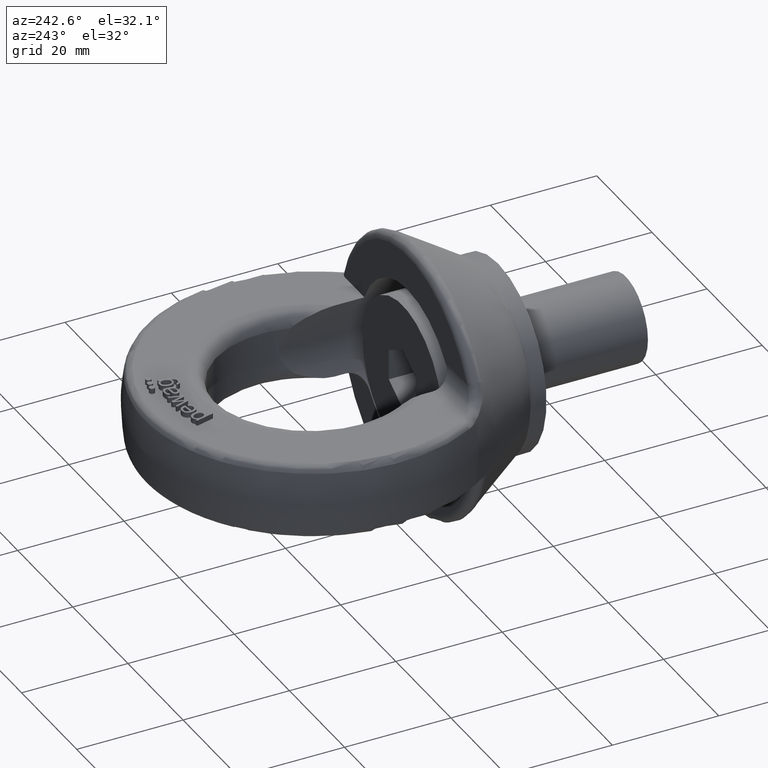
[diagram: clean part render]
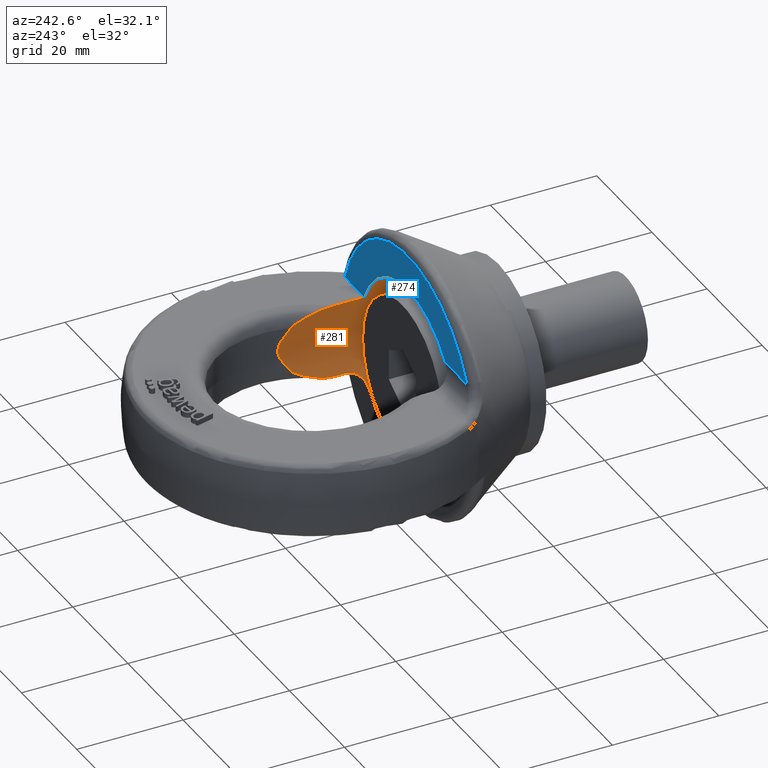
[diagram: same view with the hole feature highlighted: cylindrical wall and planar end face, labeled with their STEP entity ids]
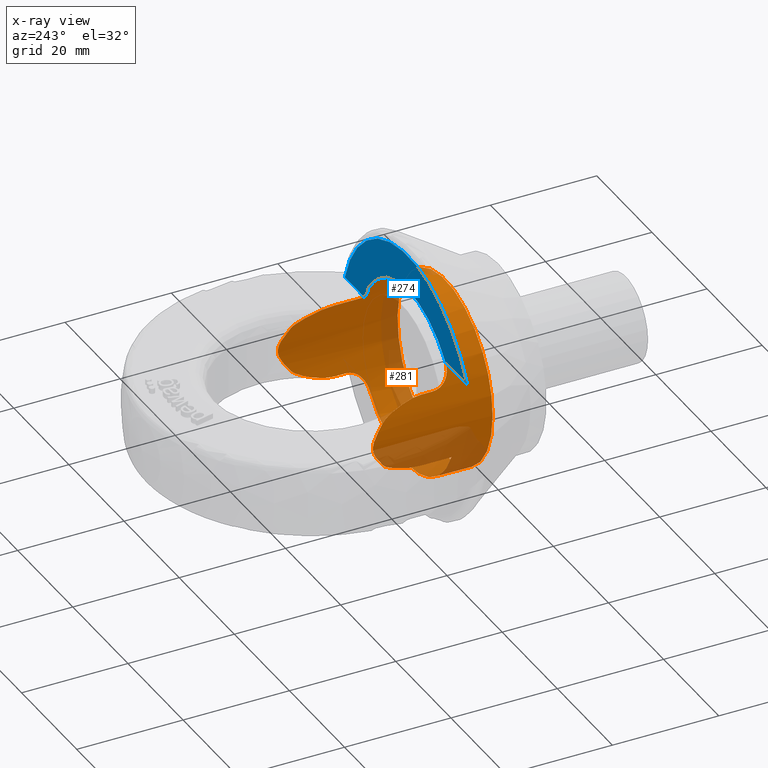
[diagram: x-ray of the same camera — body ghosted, the hole faces saturated]
A machine part, auxiliary view. The highlighted faces form one hole feature of diameter 34.4864 mm: the cylindrical wall (entity #281, orange) and its adjacent planar end face (entity #274, blue) — they share a circular edge in the B-rep.
The next image is the same camera in x-ray (body ghosted, the hole faces saturated) — the bore reads through the body.
Wall:
#112=CYLINDRICAL_SURFACE('',#3063,17.2431578064992);
#281=ADVANCED_FACE('',(#594,#595),#112,.F.);
#540=CIRCLE('',#3041,17.2431578064992);
#552=CIRCLE('',#3059,17.2431578064992);
#554=CIRCLE('',#3062,17.2431578064992);
#594=FACE_BOUND('',#659,.T.);
#595=FACE_BOUND('',#660,.T.);
#659=EDGE_LOOP('',(#1355));
#660=EDGE_LOOP('',(#1356,#1357,#1358,#1359,#1360,#1361,#1362,#1363,#1364,
#1365,#1366,#1367,#1368,#1369));
#865=LINE('',#3883,#1049);
#866=LINE('',#3888,#1050);
#877=LINE('',#4134,#1061);
#878=LINE('',#4155,#1062);
#1049=VECTOR('',#3211,1.);
#1050=VECTOR('',#3214,1.);
#1061=VECTOR('',#3273,1.);
#1062=VECTOR('',#3276,1.);
#1355=ORIENTED_EDGE('',*,*,#2453,.F.);
#1356=ORIENTED_EDGE('',*,*,#2410,.F.);
#1357=ORIENTED_EDGE('',*,*,#2455,.T.);
#1358=ORIENTED_EDGE('',*,*,#2447,.T.);
#1359=ORIENTED_EDGE('',*,*,#2456,.T.);
#1360=ORIENTED_EDGE('',*,*,#2457,.F.);
#1361=ORIENTED_EDGE('',*,*,#2458,.T.);
#1362=ORIENTED_EDGE('',*,*,#2459,.T.);
#1363=ORIENTED_EDGE('',*,*,#2460,.F.);
#1364=ORIENTED_EDGE('',*,*,#2461,.T.);
#1365=ORIENTED_EDGE('',*,*,#2449,.T.);
#1366=ORIENTED_EDGE('',*,*,#2462,.T.);
#1367=ORIENTED_EDGE('',*,*,#2408,.F.);
#1368=ORIENTED_EDGE('',*,*,#2463,.T.);
#1369=ORIENTED_EDGE('',*,*,#2433,.T.);
#2129=VERTEX_POINT('',#3884);
#2130=VERTEX_POINT('',#3885);
#2131=VERTEX_POINT('',#3887);
#2132=VERTEX_POINT('',#3889);
#2152=VERTEX_POINT('',#4024);
#2165=VERTEX_POINT('',#4089);
#2166=VERTEX_POINT('',#4090);
#2167=VERTEX_POINT('',#4092);
#2168=VERTEX_POINT('',#4103);
#2171=VERTEX_POINT('',#4113);
#2173=VERTEX_POINT('',#4133);
#2174=VERTEX_POINT('',#4135);
#2175=VERTEX_POINT('',#4152);
#2176=VERTEX_POINT('',#4154);
#2177=VERTEX_POINT('',#4156);
#2408=EDGE_CURVE('',#2129,#2130,#865,.T.);
#2410=EDGE_CURVE('',#2131,#2132,#866,.T.);
#2433=EDGE_CURVE('',#2152,#2132,#540,.T.);
#2447=EDGE_CURVE('',#2165,#2166,#2818,.T.);
#2449=EDGE_CURVE('',#2168,#2167,#2819,.T.);
#2453=EDGE_CURVE('',#2171,#2171,#552,.T.);
#2455=EDGE_CURVE('',#2131,#2165,#2820,.T.);
#2456=EDGE_CURVE('',#2166,#2173,#2821,.T.);
#2457=EDGE_CURVE('',#2174,#2173,#877,.T.);
#2458=EDGE_CURVE('',#2174,#2175,#2822,.T.);
#2459=EDGE_CURVE('',#2175,#2176,#554,.T.);
#2460=EDGE_CURVE('',#2177,#2176,#878,.T.);
#2461=EDGE_CURVE('',#2177,#2168,#2823,.T.);
#2462=EDGE_CURVE('',#2167,#2130,#2824,.T.);
#2463=EDGE_CURVE('',#2129,#2152,#2825,.T.);
#2818=B_SPLINE_CURVE_WITH_KNOTS('',3,(#4079,#4080,#4081,#4082,#4083,#4084,
#4085,#4086,#4087,#4088),.UNSPECIFIED.,.F.,.F.,(4,2,2,2,4),(0.,0.25,0.5,
0.75,1.),.UNSPECIFIED.);
#2819=B_SPLINE_CURVE_WITH_KNOTS('',3,(#4093,#4094,#4095,#4096,#4097,#4098,
#4099,#4100,#4101,#4102),.UNSPECIFIED.,.F.,.F.,(4,2,2,2,4),(0.,0.25,0.5,
0.75,1.),.UNSPECIFIED.);
#2820=B_SPLINE_CURVE_WITH_KNOTS('',3,(#4117,#4118,#4119,#4120,#4121,#4122,
#4123,#4124),.UNSPECIFIED.,.F.,.F.,(4,2,2,4),(0.,0.499999999999999,0.75,
1.),.UNSPECIFIED.);
#2821=B_SPLINE_CURVE_WITH_KNOTS('',3,(#4125,#4126,#4127,#4128,#4129,#4130,
#4131,#4132),.UNSPECIFIED.,.F.,.F.,(4,2,2,4),(0.,0.25,0.5,1.),
 .UNSPECIFIED.);
#2822=B_SPLINE_CURVE_WITH_KNOTS('',3,(#4136,#4137,#4138,#4139,#4140,#4141,
#4142,#4143,#4144,#4145,#4146,#4147,#4148,#4149,#4150,#4151),
 .UNSPECIFIED.,.F.,.F.,(4,3,3,3,3,4),(0.,0.182677939227406,0.365097147091186,
0.551353588669147,0.751434623394889,1.),.UNSPECIFIED.);
#2823=B_SPLINE_CURVE_WITH_KNOTS('',3,(#4157,#4158,#4159,#4160,#4161,#4162,
#4163,#4164),.UNSPECIFIED.,.F.,.F.,(4,2,2,4),(0.,0.5,0.75,1.),
 .UNSPECIFIED.);
#2824=B_SPLINE_CURVE_WITH_KNOTS('',3,(#4165,#4166,#4167,#4168,#4169,#4170,
#4171,#4172),.UNSPECIFIED.,.F.,.F.,(4,2,2,4),(0.,0.25,0.5,1.),
 .UNSPECIFIED.);
#2825=B_SPLINE_CURVE_WITH_KNOTS('',3,(#4173,#4174,#4175,#4176,#4177,#4178,
#4179,#4180,#4181,#4182,#4183,#4184,#4185,#4186,#4187,#4188),
 .UNSPECIFIED.,.F.,.F.,(4,3,3,3,3,4),(0.,0.182677939227406,0.365097147091186,
0.551353588669147,0.75143462339489,1.),.UNSPECIFIED.);
#3041=AXIS2_PLACEMENT_3D('',#4027,#3231,#3232);
#3059=AXIS2_PLACEMENT_3D('',#4112,#3267,#3268);
#3062=AXIS2_PLACEMENT_3D('',#4153,#3274,#3275);
#3063=AXIS2_PLACEMENT_3D('',#4189,#3277,#3278);
#3211=DIRECTION('',(0.,1.,0.));
#3214=DIRECTION('',(0.,-1.,0.));
#3231=DIRECTION('',(-1.94269602349167E-16,1.,0.));
#3232=DIRECTION('',(-1.,-2.01207168135174E-16,0.));
#3267=DIRECTION('',(-1.94269602349167E-16,1.,0.));
#3268=DIRECTION('',(-1.,-2.01207168135174E-16,0.));
#3273=DIRECTION('',(0.,1.,0.));
#3274=DIRECTION('',(1.94269602349167E-16,1.,4.55156335694492E-31));
#3275=DIRECTION('',(1.,-2.01207168135174E-16,2.34291072916505E-15));
#3276=DIRECTION('',(0.,-1.,0.));
#3277=DIRECTION('',(0.,1.,0.));
#3278=DIRECTION('',(0.,0.,1.));
#3883=CARTESIAN_POINT('',(-15.7583784425883,9.2,7.00000000000001));
#3884=CARTESIAN_POINT('',(-15.7583784425883,20.5,7.00000000000001));
#3885=CARTESIAN_POINT('',(-15.7583784425883,22.7029882839717,7.00000000000001));
#3887=CARTESIAN_POINT('',(15.7583784425883,22.7029882839717,7.00000000000001));
#3888=CARTESIAN_POINT('',(15.7583784425883,9.2,7.00000000000001));
#3889=CARTESIAN_POINT('',(15.7583784425883,17.,7.00000000000001));
#4024=CARTESIAN_POINT('',(-13.6775908382958,17.,10.5));
#4027=CARTESIAN_POINT('',(0.,17.,0.));
#4079=CARTESIAN_POINT('',(16.7238300379977,30.3460200950948,4.2));
#4080=CARTESIAN_POINT('',(16.8783539295037,30.8474250958975,3.5847068337247));
#4081=CARTESIAN_POINT('',(17.002477799823,31.3350103485572,2.95374257859822));
#4082=CARTESIAN_POINT('',(17.1849562937496,32.167033256689,1.57674466417856));
#4083=CARTESIAN_POINT('',(17.2434025740802,32.5141885964278,0.803243546149902));
#4084=CARTESIAN_POINT('',(17.2429114481643,32.5113536742764,-0.813718204903218));
#4085=CARTESIAN_POINT('',(17.1834579316774,32.1597159608621,-1.59018147245498));
#4086=CARTESIAN_POINT('',(17.0021213014804,31.33387527772,-2.95428076776941));
#4087=CARTESIAN_POINT('',(16.8776179806995,30.8450370612244,-3.58763728199072));
#4088=CARTESIAN_POINT('',(16.7238300379977,30.3460200950948,-4.19999999999998));
#4089=CARTESIAN_POINT('',(16.7238300379977,30.3460200950948,4.2));
#4090=CARTESIAN_POINT('',(16.7238300379977,30.3460200950948,-4.19999999999997));
#4092=CARTESIAN_POINT('',(-16.7238300379977,30.3460200950948,4.20000000000001));
#4093=CARTESIAN_POINT('',(-16.7238300379977,30.3460200950948,-4.20000000000003));
#4094=CARTESIAN_POINT('',(-16.8768956450245,30.8426931989505,-3.59051352462396));
#4095=CARTESIAN_POINT('',(-17.0019862487561,31.3329068514501,-2.95684606621573));
#4096=CARTESIAN_POINT('',(-17.184930085508,32.1667763849709,-1.57754651861389));
#4097=CARTESIAN_POINT('',(-17.2434084693244,32.5142226254084,-0.806918083374596));
#4098=CARTESIAN_POINT('',(-17.2429054906884,32.5113192860761,0.817595665616148));
#4099=CARTESIAN_POINT('',(-17.18453082883,32.1648382996204,1.58107589286381));
#4100=CARTESIAN_POINT('',(-17.0019386634232,31.332808492536,2.95668437125038));
#4101=CARTESIAN_POINT('',(-16.8771839598882,30.8436287339869,3.58936549396264));
#4102=CARTESIAN_POINT('',(-16.7238300379977,30.3460200950948,4.20000000000001));
#4103=CARTESIAN_POINT('',(-16.7238300379977,30.3460200950948,-4.20000000000004));
#4112=CARTESIAN_POINT('',(0.,10.,0.));
#4113=CARTESIAN_POINT('',(-17.2431578064992,10.,0.));
#4117=CARTESIAN_POINT('',(15.7583784425883,22.7029882839717,7.00000000000001));
#4118=CARTESIAN_POINT('',(15.7583784425883,24.1067525492222,7.));
#4119=CARTESIAN_POINT('',(15.9201682235095,25.4593551178655,6.64240600129244));
#4120=CARTESIAN_POINT('',(16.1871955988044,27.4070022842676,5.94667095429308));
#4121=CARTESIAN_POINT('',(16.2839348235806,28.0453934796009,5.68039539681398));
#4122=CARTESIAN_POINT('',(16.4876001107327,29.2750975677448,5.05889985978532));
#4123=CARTESIAN_POINT('',(16.5892540076664,29.9093426729911,4.73586349010682));
#4124=CARTESIAN_POINT('',(16.7238300379977,30.3460200950948,4.20000000000003));
#4125=CARTESIAN_POINT('',(16.7238300379977,30.3460200950948,-4.19999999999997));
#4126=CARTESIAN_POINT('',(16.5873324185791,29.903107427629,-4.74351499708254));
#4127=CARTESIAN_POINT('',(16.4868203897948,29.2706656960946,-5.06141072263698));
#4128=CARTESIAN_POINT('',(16.283363032249,28.0416632590335,-5.68200786945645));
#4129=CARTESIAN_POINT('',(16.1875242681987,27.4089922954093,-5.94573266330239));
#4130=CARTESIAN_POINT('',(15.9217018717543,25.4713507235948,-6.63857299691742));
#4131=CARTESIAN_POINT('',(15.7583784425884,24.1078443630591,-6.99999999999997));
#4132=CARTESIAN_POINT('',(15.7583784425884,22.7029882839717,-6.99999999999997));
#4133=CARTESIAN_POINT('',(15.7583784425884,22.7029882839717,-6.99999999999997));
#4134=CARTESIAN_POINT('',(15.7583784425884,9.2,-6.99999999999997));
#4135=CARTESIAN_POINT('',(15.7583784425884,20.5,-6.99999999999997));
#4136=CARTESIAN_POINT('',(15.7583784425884,20.5,-6.99999999999997));
#4137=CARTESIAN_POINT('',(15.7583784425884,20.1367796577121,-6.99999999999997));
#4138=CARTESIAN_POINT('',(15.7327574774421,19.7685357293251,-7.05843871219311));
#4139=CARTESIAN_POINT('',(15.6823100786297,19.4261831930591,-7.16879639392435));
#4140=CARTESIAN_POINT('',(15.631902115453,19.0840982799058,-7.27906780707812));
#4141=CARTESIAN_POINT('',(15.5552275989608,18.7586781954158,-7.44393401751464));
#4142=CARTESIAN_POINT('',(15.4553180463978,18.4741528672489,-7.64589008713327));
#4143=CARTESIAN_POINT('',(15.3532334029808,18.1834332521176,-7.85224286145818));
#4144=CARTESIAN_POINT('',(15.2242331760567,17.9279858536678,-8.10210777458109));
#4145=CARTESIAN_POINT('',(15.0746445974216,17.7216230990911,-8.37147426689358));
#4146=CARTESIAN_POINT('',(14.9139142210308,17.49988983898,-8.66090396862284));
#4147=CARTESIAN_POINT('',(14.7256743961402,17.3292358264097,-8.9792020497594));
#4148=CARTESIAN_POINT('',(14.5202538645523,17.2121686958103,-9.29993112064742));
#4149=CARTESIAN_POINT('',(14.2656398551719,17.0670666884396,-9.69746740405785));
#4150=CARTESIAN_POINT('',(13.9783330617718,17.,-10.1082448494757));
#4151=CARTESIAN_POINT('',(13.6775908382958,17.,-10.5));
#4152=CARTESIAN_POINT('',(13.6775908382958,17.,-10.5));
#4153=CARTESIAN_POINT('',(0.,17.,0.));
#4154=CARTESIAN_POINT('',(-15.7583784425883,17.,-7.00000000000004));
#4155=CARTESIAN_POINT('',(-15.7583784425883,9.2,-7.00000000000004));
#4156=CARTESIAN_POINT('',(-15.7583784425883,22.7029882839717,-7.00000000000004));
#4157=CARTESIAN_POINT('',(-15.7583784425883,22.7029882839717,-7.00000000000004));
#4158=CARTESIAN_POINT('',(-15.7583784425883,24.1067525492222,-7.00000000000004));
#4159=CARTESIAN_POINT('',(-15.9201682235095,25.4593551178655,-6.64240600129247));
#4160=CARTESIAN_POINT('',(-16.1871955988044,27.4070022842676,-5.94667095429311));
#4161=CARTESIAN_POINT('',(-16.2839348235806,28.0453934796009,-5.68039539681402));
#4162=CARTESIAN_POINT('',(-16.4876001107326,29.2750975677448,-5.05889985978536));
#4163=CARTESIAN_POINT('',(-16.5892540076664,29.9093426729911,-4.73586349010686));
#4164=CARTESIAN_POINT('',(-16.7238300379977,30.3460200950948,-4.20000000000007));
#4165=CARTESIAN_POINT('',(-16.7238300379977,30.3460200950948,4.20000000000001));
#4166=CARTESIAN_POINT('',(-16.5873324185791,29.903107427629,4.74351499708258));
#4167=CARTESIAN_POINT('',(-16.4868203897948,29.2706656960946,5.06141072263702));
#4168=CARTESIAN_POINT('',(-16.283363032249,28.0416632590335,5.68200786945649));
#4169=CARTESIAN_POINT('',(-16.1875242681986,27.4089922954093,5.94573266330243));
#4170=CARTESIAN_POINT('',(-15.9217018717543,25.4713507235948,6.63857299691746));
#4171=CARTESIAN_POINT('',(-15.7583784425883,24.1078443630591,7.00000000000001));
#4172=CARTESIAN_POINT('',(-15.7583784425883,22.7029882839717,7.00000000000001));
#4173=CARTESIAN_POINT('',(-15.7583784425883,20.5,7.00000000000001));
#4174=CARTESIAN_POINT('',(-15.7583784425883,20.1367796577121,7.00000000000001));
#4175=CARTESIAN_POINT('',(-15.7327574774421,19.7685357293251,7.05843871219315));
#4176=CARTESIAN_POINT('',(-15.6823100786297,19.4261831930591,7.16879639392438));
#4177=CARTESIAN_POINT('',(-15.6319021154529,19.0840982799058,7.27906780707816));
#4178=CARTESIAN_POINT('',(-15.5552275989607,18.7586781954158,7.44393401751468));
#4179=CARTESIAN_POINT('',(-15.4553180463978,18.4741528672489,7.6458900871333));
#4180=CARTESIAN_POINT('',(-15.3532334029808,18.1834332521176,7.85224286145822));
#4181=CARTESIAN_POINT('',(-15.2242331760566,17.9279858536678,8.10210777458113));
#4182=CARTESIAN_POINT('',(-15.0746445974216,17.7216230990911,8.37147426689362));
#4183=CARTESIAN_POINT('',(-14.9139142210308,17.49988983898,8.66090396862287));
#4184=CARTESIAN_POINT('',(-14.7256743961402,17.3292358264097,8.97920204975943));
#4185=CARTESIAN_POINT('',(-14.5202538645523,17.2121686958103,9.29993112064746));
#4186=CARTESIAN_POINT('',(-14.2656398551719,17.0670666884396,9.69746740405788));
#4187=CARTESIAN_POINT('',(-13.9783330617718,17.,10.1082448494758));
#4188=CARTESIAN_POINT('',(-13.6775908382958,17.,10.5));
#4189=CARTESIAN_POINT('',(0.,9.2,0.));
End face:
#125=FACE_OUTER_BOUND('',#648,.T.);
#274=ADVANCED_FACE('',(#125),#446,.T.);
#446=PLANE('',#3042);
#539=CIRCLE('',#3040,23.9118750000001);
#540=CIRCLE('',#3041,17.2431578064992);
#648=EDGE_LOOP('',(#1326,#1327,#1328,#1329));
#867=LINE('',#3890,#1051);
#876=LINE('',#4023,#1060);
#1051=VECTOR('',#3215,1.);
#1060=VECTOR('',#3228,1.);
#1326=ORIENTED_EDGE('',*,*,#2431,.T.);
#1327=ORIENTED_EDGE('',*,*,#2432,.T.);
#1328=ORIENTED_EDGE('',*,*,#2411,.T.);
#1329=ORIENTED_EDGE('',*,*,#2433,.F.);
#2132=VERTEX_POINT('',#3889);
#2133=VERTEX_POINT('',#3891);
#2152=VERTEX_POINT('',#4024);
#2153=VERTEX_POINT('',#4025);
#2411=EDGE_CURVE('',#2133,#2132,#867,.T.);
#2431=EDGE_CURVE('',#2152,#2153,#876,.T.);
#2432=EDGE_CURVE('',#2153,#2133,#539,.T.);
#2433=EDGE_CURVE('',#2152,#2132,#540,.T.);
#3040=AXIS2_PLACEMENT_3D('',#4026,#3229,#3230);
#3041=AXIS2_PLACEMENT_3D('',#4027,#3231,#3232);
#3042=AXIS2_PLACEMENT_3D('',#4028,#3233,#3234);
#3215=DIRECTION('',(-1.,0.,0.));
#3228=DIRECTION('',(-1.,-1.94269602349167E-16,1.96585689920538E-32));
#3229=DIRECTION('',(-1.94269602349167E-16,1.,0.));
#3230=DIRECTION('',(-1.,-1.45093053219524E-16,0.));
#3231=DIRECTION('',(-1.94269602349167E-16,1.,0.));
#3232=DIRECTION('',(-1.,-2.01207168135174E-16,0.));
#3233=DIRECTION('',(-1.94269602349167E-16,1.,0.));
#3234=DIRECTION('',(-1.,-1.94289029309402E-16,0.));
#3889=CARTESIAN_POINT('',(15.7583784425883,17.,7.00000000000001));
#3890=CARTESIAN_POINT('',(64.,17.,7.00000000000001));
#3891=CARTESIAN_POINT('',(22.8643339289737,17.,7.00000000000001));
#4023=CARTESIAN_POINT('',(-8.92946428571429,17.,10.5));
#4024=CARTESIAN_POINT('',(-13.6775908382958,17.,10.5));
#4025=CARTESIAN_POINT('',(-21.4831972949938,17.,10.5));
#4026=CARTESIAN_POINT('',(-1.92350511161869E-13,17.,0.));
#4027=CARTESIAN_POINT('',(0.,17.,0.));
#4028=CARTESIAN_POINT('',(-8.92946428571429,17.,35.2));